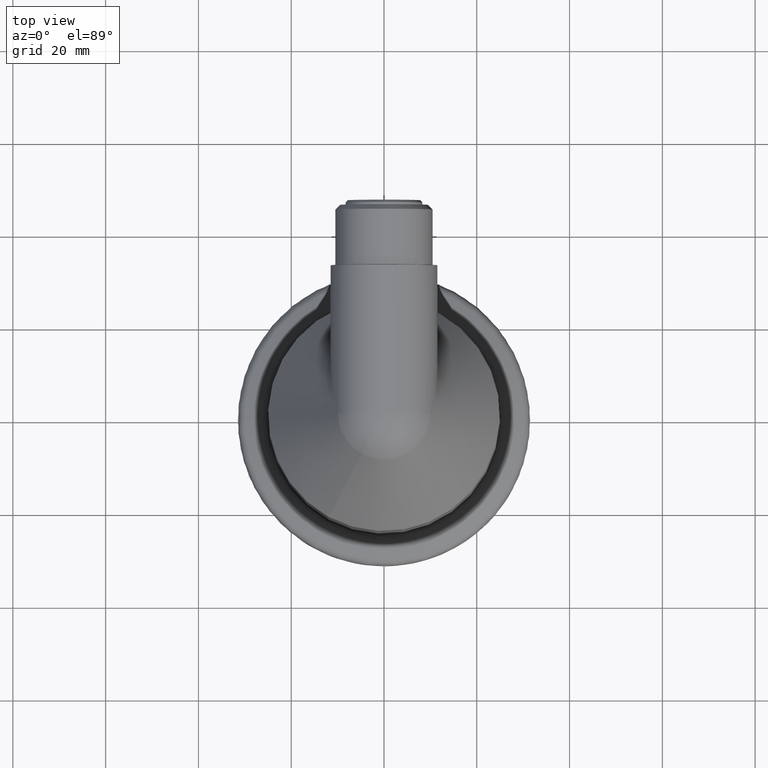
[diagram: clean part render]
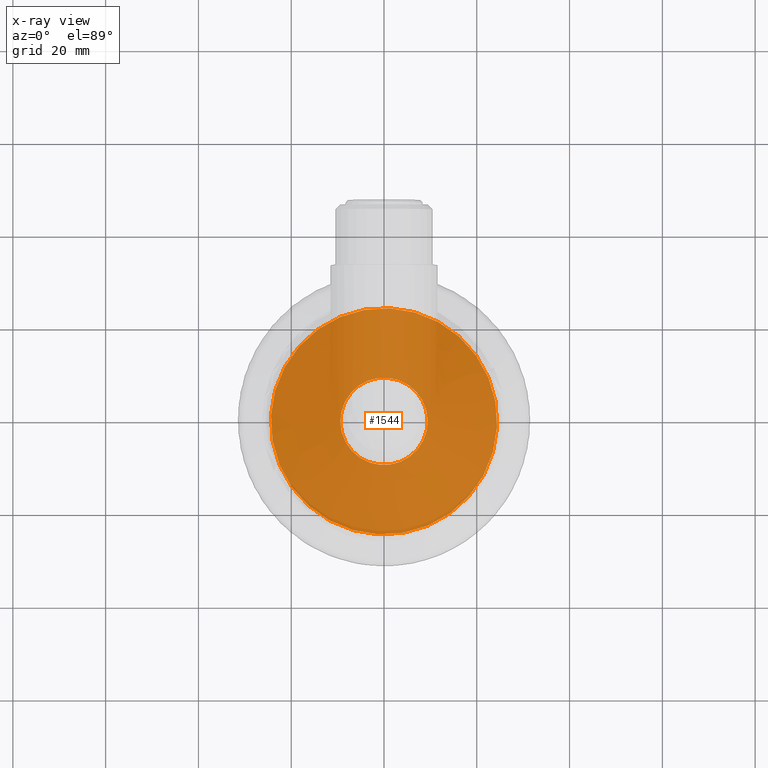
[diagram: x-ray — body ghosted, one internal face saturated and labeled with its STEP entity id]
A machine part, top view, then the same camera in x-ray: the body is ghosted and one INTERNAL B-rep face — a face not visible from any outside direction — is saturated and labeled: STEP entity #1544.
In plain terms, the highlighted planar face has unit normal (0, 0, -1).
Its self-contained STEP definition (entity closure, byte-faithful):
#384=AXIS2_PLACEMENT_3D('Circle Axis2P3D',#382,#383,$) ;
#401=AXIS2_PLACEMENT_3D('Circle Axis2P3D',#399,#400,$) ;
#1520=AXIS2_PLACEMENT_3D('Plane Axis2P3D',#1517,#1518,#1519) ;
#1524=AXIS2_PLACEMENT_3D('Circle Axis2P3D',#1522,#1523,$) ;
#1533=AXIS2_PLACEMENT_3D('Circle Axis2P3D',#1531,#1532,$) ;
#372=CARTESIAN_POINT('Vertex',(-8.2628786032,-4.51403117389,14.5)) ;
#379=CARTESIAN_POINT('Vertex',(8.26287861148,4.51403115873,14.5)) ;
#382=CARTESIAN_POINT('Axis2P3D Location',(-8.881784197E-016,1.66533453694E-015,14.5)) ;
#399=CARTESIAN_POINT('Axis2P3D Location',(-8.881784197E-016,3.5527136788E-015,14.5)) ;
#1517=CARTESIAN_POINT('Axis2P3D Location',(0.,0.,14.5)) ;
#1522=CARTESIAN_POINT('Axis2P3D Location',(2.44249065418E-015,-1.11022302463E-015,14.5)) ;
#1526=CARTESIAN_POINT('Vertex',(-21.4077491459,11.6951063487,14.5)) ;
#1528=CARTESIAN_POINT('Vertex',(21.4077490148,-11.6951065887,14.5)) ;
#1531=CARTESIAN_POINT('Axis2P3D Location',(1.7763568394E-015,-3.10862446895E-015,14.5)) ;
#383=DIRECTION('Axis2P3D Direction',(-0.,0.,-1.)) ;
#400=DIRECTION('Axis2P3D Direction',(0.,0.,-1.)) ;
#1518=DIRECTION('Axis2P3D Direction',(0.,0.,-1.)) ;
#1519=DIRECTION('Axis2P3D XDirection',(1.,0.,0.)) ;
#1523=DIRECTION('Axis2P3D Direction',(0.,0.,-1.)) ;
#1532=DIRECTION('Axis2P3D Direction',(0.,0.,-1.)) ;
#1537=ORIENTED_EDGE('',*,*,#1530,.T.) ;
#1538=ORIENTED_EDGE('',*,*,#1535,.T.) ;
#1541=ORIENTED_EDGE('',*,*,#386,.T.) ;
#1542=ORIENTED_EDGE('',*,*,#403,.T.) ;
#1543=FACE_BOUND('',#1540,.T.) ;
#1544=ADVANCED_FACE('Hauptk\X2\00F6\X0\rper',(#1539,#1543),#1521,.F.) ;
#385=CIRCLE('generated circle',#384,9.4155) ;
#402=CIRCLE('generated circle',#401,9.4155) ;
#1525=CIRCLE('generated circle',#1524,24.394) ;
#1534=CIRCLE('generated circle',#1533,24.394) ;
#386=EDGE_CURVE('',#373,#380,#385,.T.) ;
#403=EDGE_CURVE('',#380,#373,#402,.T.) ;
#1530=EDGE_CURVE('',#1527,#1529,#1525,.F.) ;
#1535=EDGE_CURVE('',#1529,#1527,#1534,.F.) ;
#1536=EDGE_LOOP('',(#1537,#1538)) ;
#1540=EDGE_LOOP('',(#1541,#1542)) ;
#1539=FACE_OUTER_BOUND('',#1536,.T.) ;
#1521=PLANE('Plane',#1520) ;
#373=VERTEX_POINT('',#372) ;
#380=VERTEX_POINT('',#379) ;
#1527=VERTEX_POINT('',#1526) ;
#1529=VERTEX_POINT('',#1528) ;